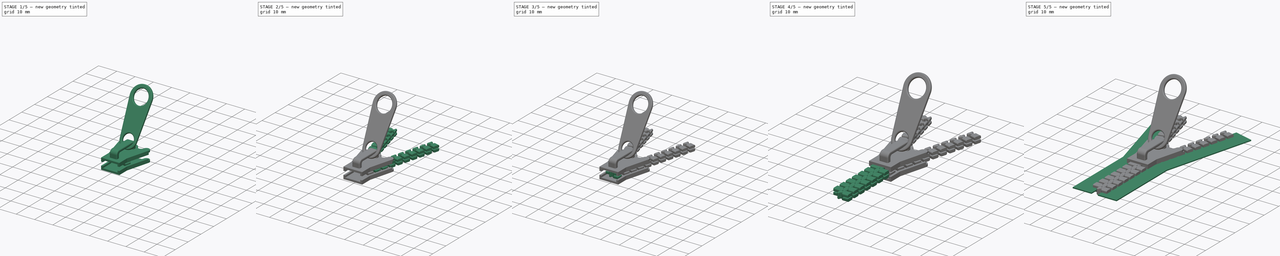
[diagram: build sequence overview — one tinted view per stage of 5, left to right]
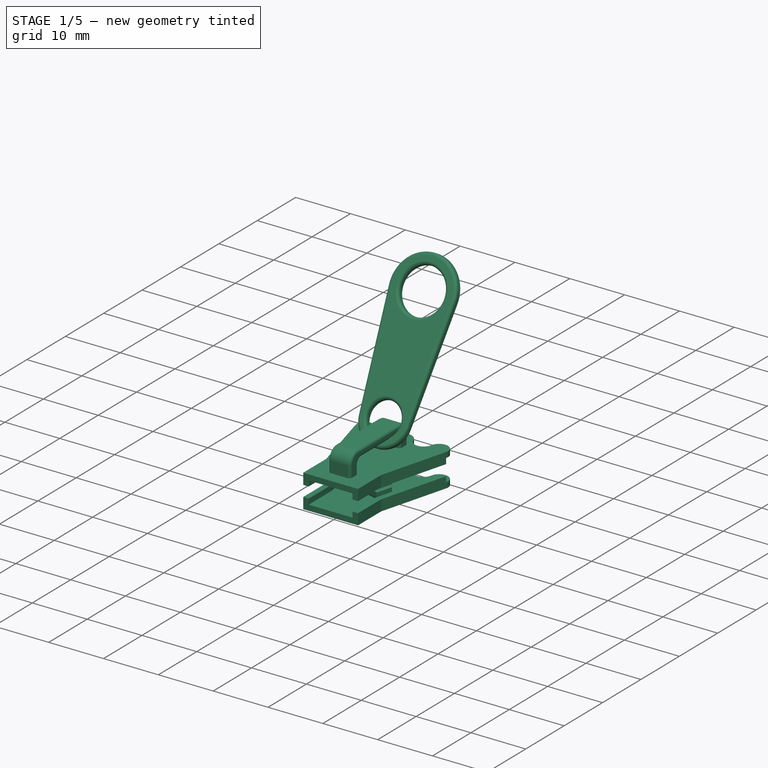
[diagram: stage 1 of 5 — iso view after this stage's code; geometry added in this stage tinted green]
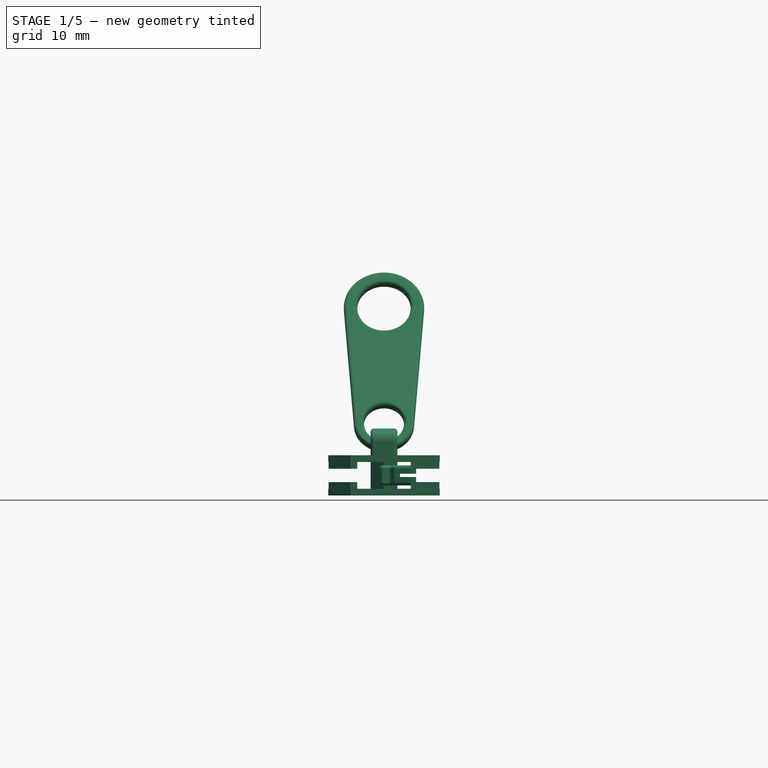
[diagram: stage 1 of 5 — front view after this stage's code; geometry added in this stage tinted green]
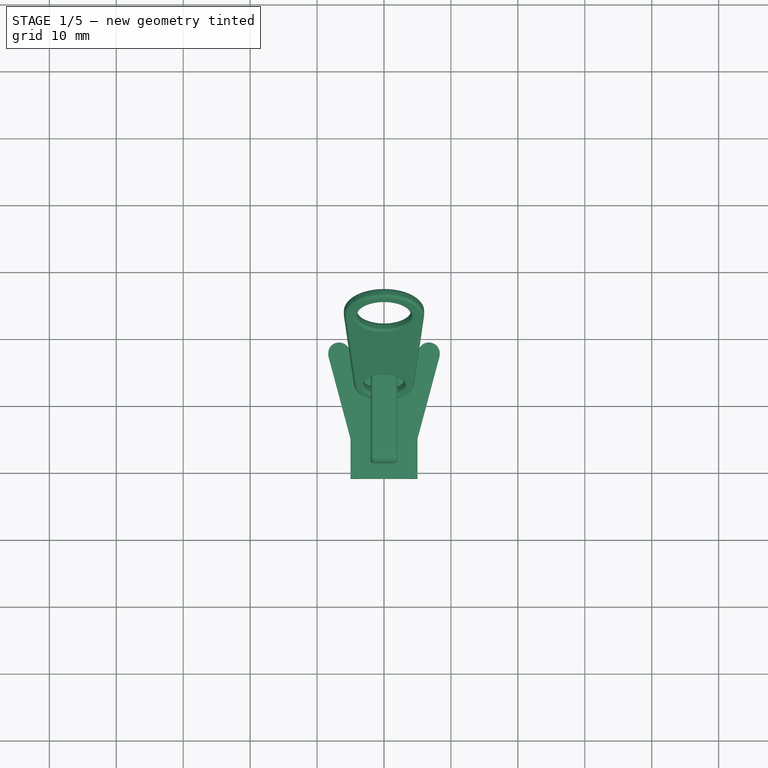
[diagram: stage 1 of 5 — top view after this stage's code; geometry added in this stage tinted green]
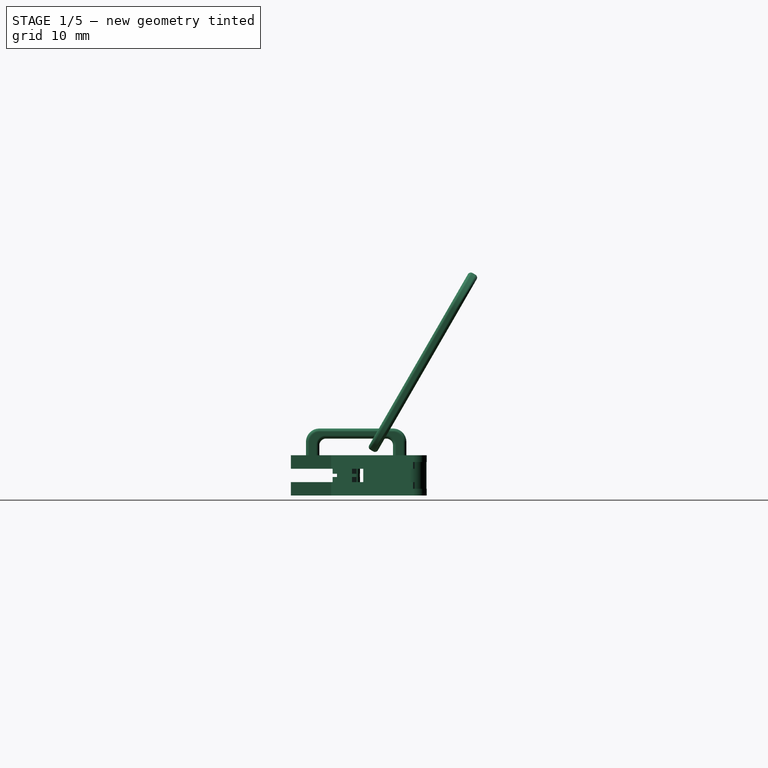
[diagram: stage 1 of 5 — right view after this stage's code; geometry added in this stage tinted green]
FCSTD DOCUMENT  (FreeCAD 0.18R13524 (Git))
Label: ZIPPER-CJ
License: All rights reserved
LicenseURL: http://en.wikipedia.org/wiki/All_rights_reserved
objects: Part::FeaturePython×9, Part::MultiFuse×3, Sketcher::SketchObject×1, PartDesign::Pad×1, PartDesign::Body×1, Part::Box×1, Part::Cut×1
note: 18 computed .brp shape members not serialized (recipe doc carries the construction recipe); baked Part::Feature solids carry a one-line shape summary decoded from their .brp

FEATURE [Part::FeaturePython] ZIPPER_0_01001  # a2plus imported part (geometry in sourceFile) (typed FeaturePython)
  Placement = pos=(0.07,8,0) rot=(0,0,1;6.02139rad)
  fixedPosition = false
  sourceFile = <path>
  timeLastImport = 1.52406e+09
  updateColors = true
FEATURE [Part::FeaturePython] ZIPPER_3_01  # a2plus imported part (geometry in sourceFile) (typed FeaturePython)
  Placement = pos=(0,17.4,0) rot=(0,0,1;0rad)
  fixedPosition = false
  sourceFile = <path>
  timeLastImport = 1.52406e+09
  updateColors = true
FEATURE [Part::FeaturePython] ZIPPER_4_01  # a2plus imported part (geometry in sourceFile) (typed FeaturePython)
  Placement = pos=(0,13.5,7.59808) rot=(1,0,0;5.75959rad)
  fixedPosition = false
  sourceFile = <path>
  timeLastImport = 1.52406e+09
  updateColors = true
note: 4 file-system paths scrubbed to <path> (originals preserved in the JSON sidecar)
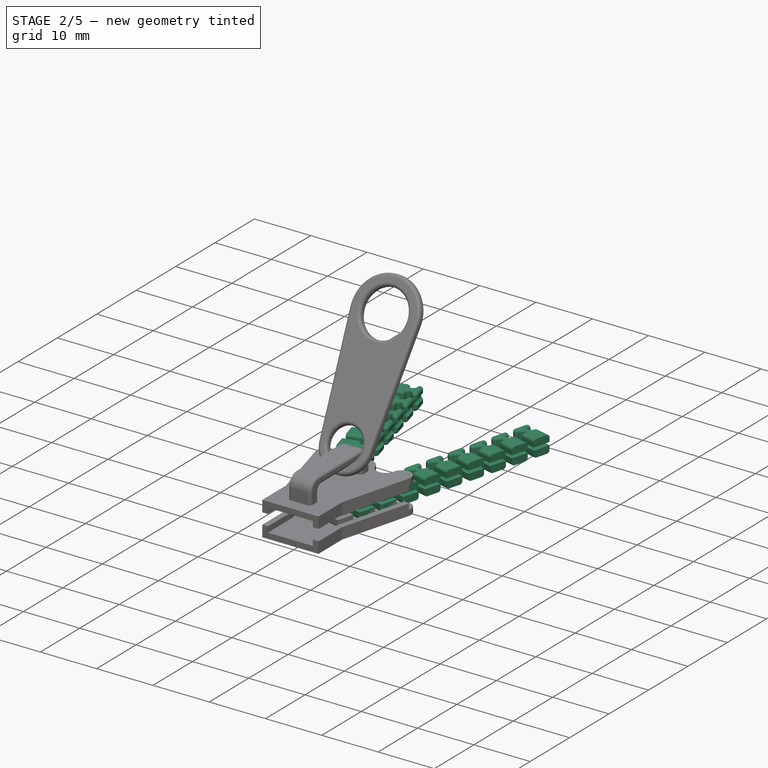
[diagram: stage 2 of 5 — iso view after this stage's code; geometry added in this stage tinted green]
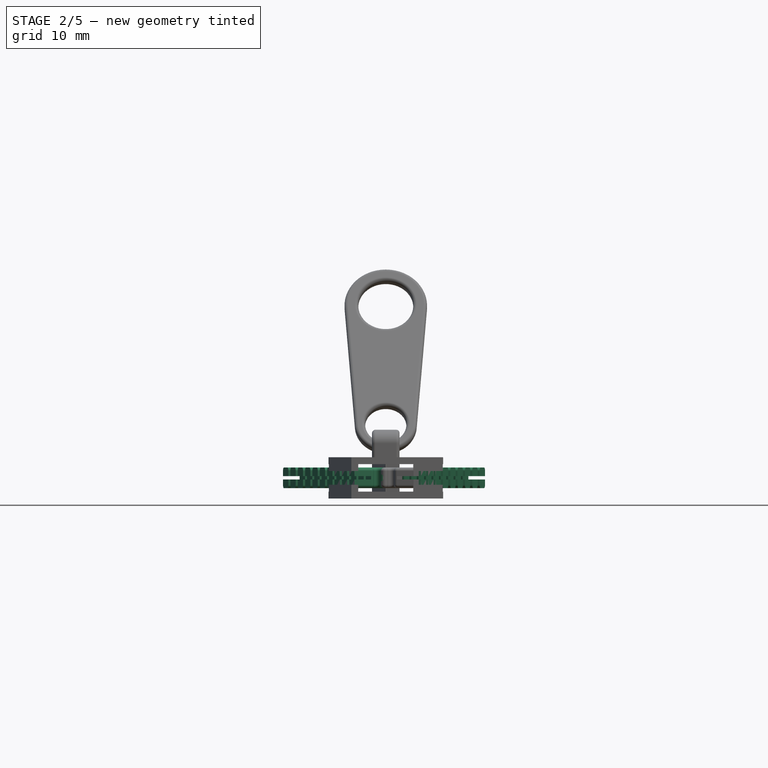
[diagram: stage 2 of 5 — front view after this stage's code; geometry added in this stage tinted green]
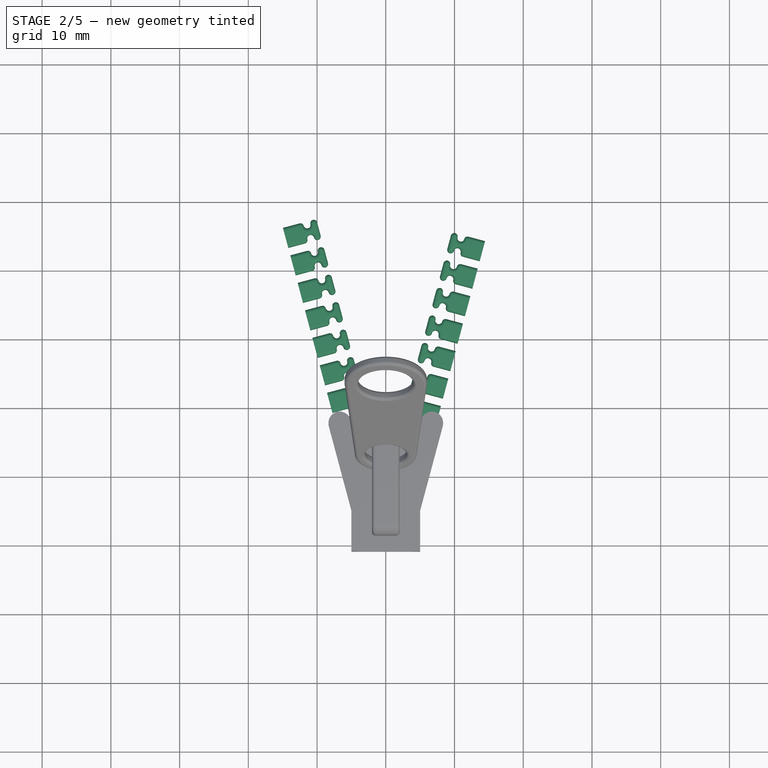
[diagram: stage 2 of 5 — top view after this stage's code; geometry added in this stage tinted green]
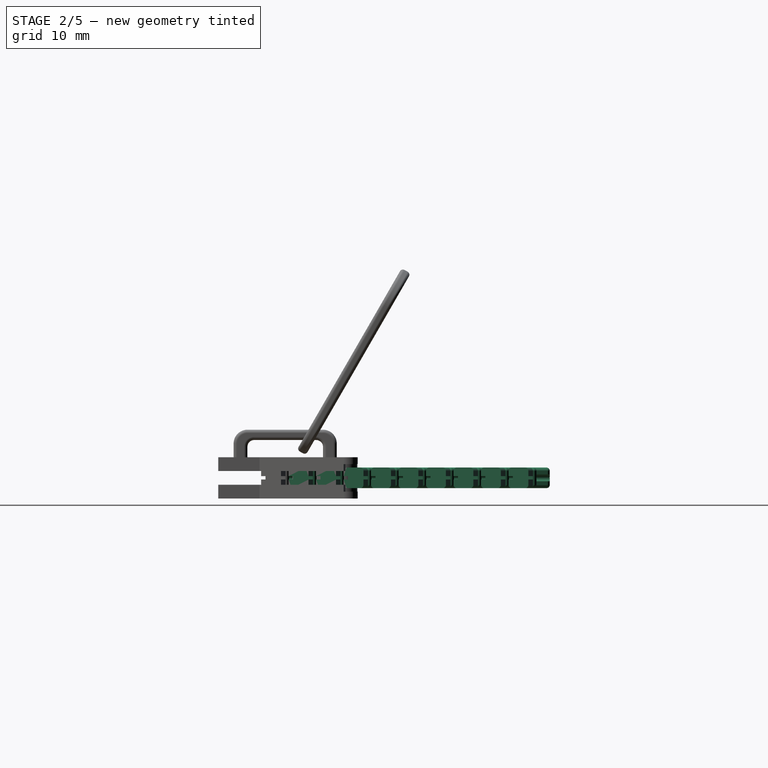
[diagram: stage 2 of 5 — right view after this stage's code; geometry added in this stage tinted green]
FEATURE [Part::FeaturePython] Clone001  label="ZIPPER_0_01002"  # Draft clone (typed FeaturePython)
  AttacherType = Attacher::AttachEngine3D
  Fuse = false
  Objects = -> [ZIPPER_0_01001]
  Placement = pos=(-0.59,9.93185,0) rot=(0,0,-1;2.87979rad)
  Scale = (1,1,1)
FEATURE [Part::FeaturePython] Array001  # Draft array (typed FeaturePython)
  Angle = 360
  ArrayType = 0
  Axis = (0,0,1)
  Base = -> ZIPPER_0_01001
  Center = (0,0,0)
  Fuse = false
  IntervalAxis = (0,0,0)
  IntervalX = (1,0,0)
  IntervalY = (1.07,4,0)
  IntervalZ = (0,0,0)
  NumberPolar = 1
  NumberX = 1
  NumberY = 10
  NumberZ = 1
FEATURE [Part::FeaturePython] Array002  # Draft array (typed FeaturePython)
  Angle = 360
  ArrayType = 0
  Axis = (0,0,1)
  Base = -> Clone001
  Center = (0,0,0)
  Fuse = false
  IntervalAxis = (0,0,0)
  IntervalX = (1,0,0)
  IntervalY = (-1.07,4,0)
  IntervalZ = (0,0,0)
  NumberPolar = 1
  NumberX = 1
  NumberY = 10
  NumberZ = 1
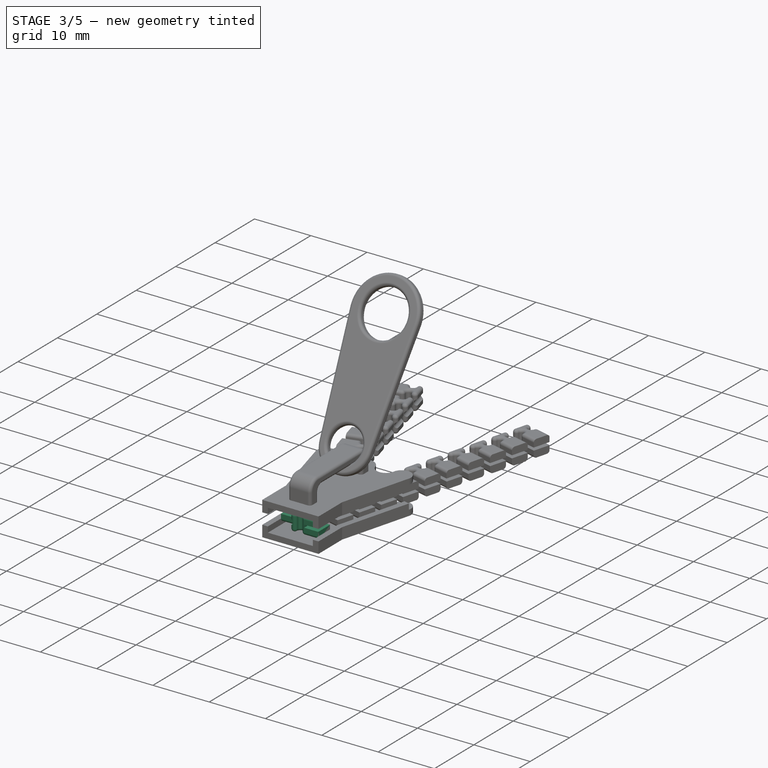
[diagram: stage 3 of 5 — iso view after this stage's code; geometry added in this stage tinted green]
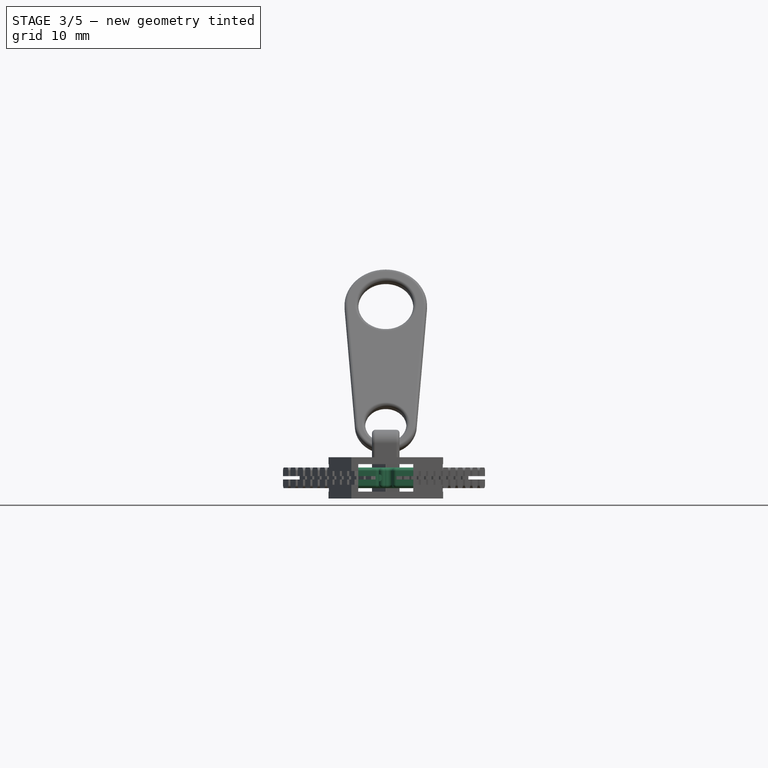
[diagram: stage 3 of 5 — front view after this stage's code; geometry added in this stage tinted green]
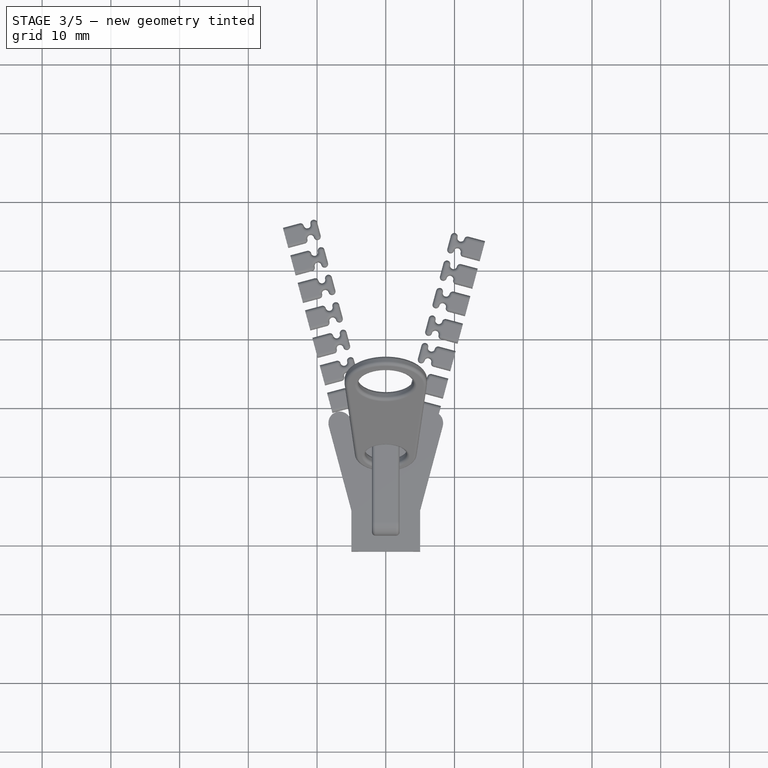
[diagram: stage 3 of 5 — top view after this stage's code; geometry added in this stage tinted green]
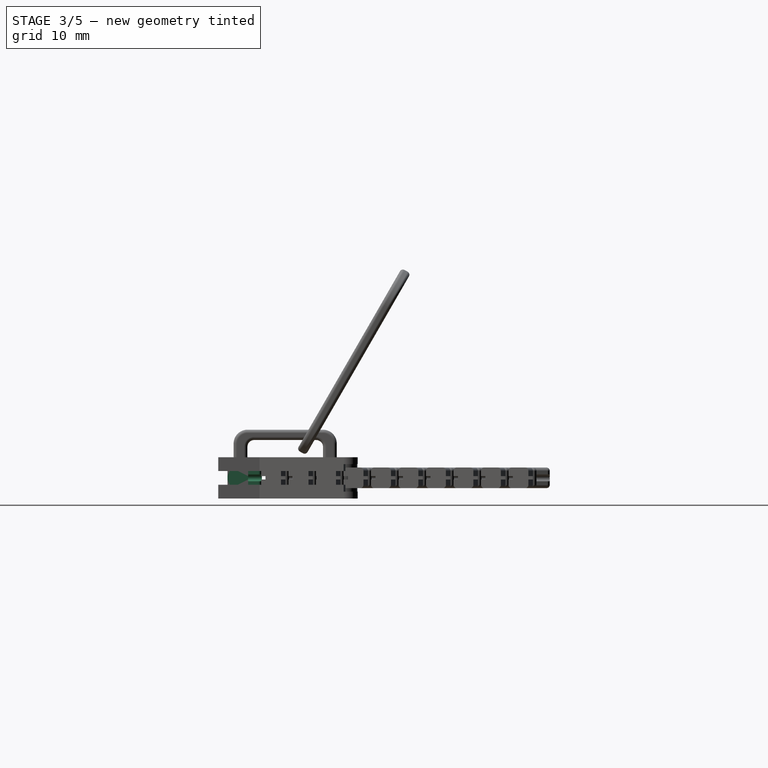
[diagram: stage 3 of 5 — right view after this stage's code; geometry added in this stage tinted green]
FEATURE [Part::FeaturePython] ZIPPER_0_01  # a2plus imported part (geometry in sourceFile) (typed FeaturePython)
  Placement = pos=(-0.5,2,0) rot=(0,0,1;0rad)
  fixedPosition = true
  sourceFile = <path>
  timeLastImport = 1.52406e+09
  updateColors = true
FEATURE [Part::FeaturePython] Clone  label="ZIPPER_0_002"  # Draft clone (typed FeaturePython)
  AttacherType = Attacher::AttachEngine3D
  Fuse = false
  Objects = -> [ZIPPER_0_01]
  Placement = pos=(0.5,4,0) rot=(0,0,1;3.14159rad)
  Scale = (1,1,1)
FEATURE [Part::MultiFuse] Fusion
  Shapes = -> [ZIPPER_0_01,Clone]
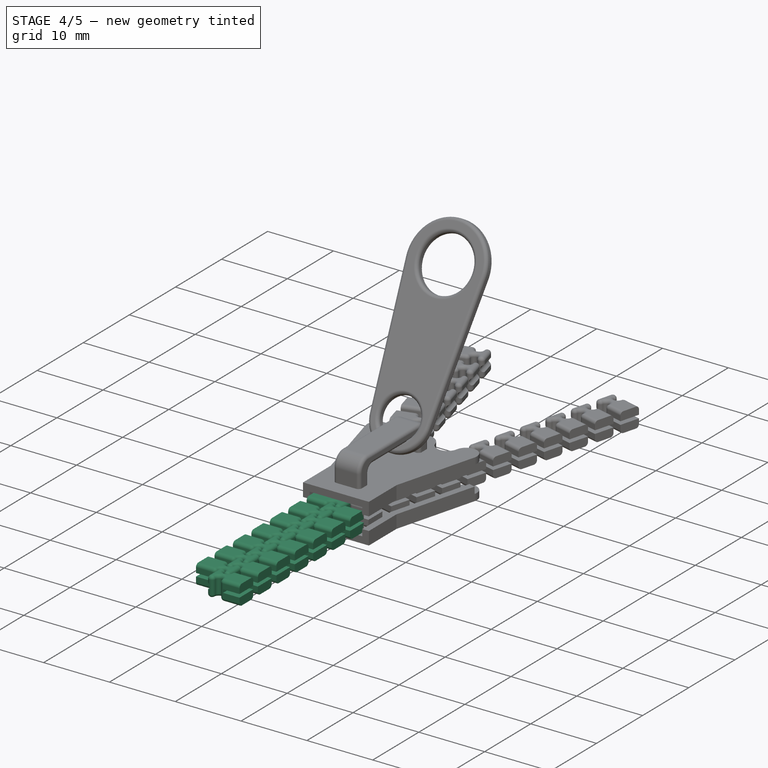
[diagram: stage 4 of 5 — iso view after this stage's code; geometry added in this stage tinted green]
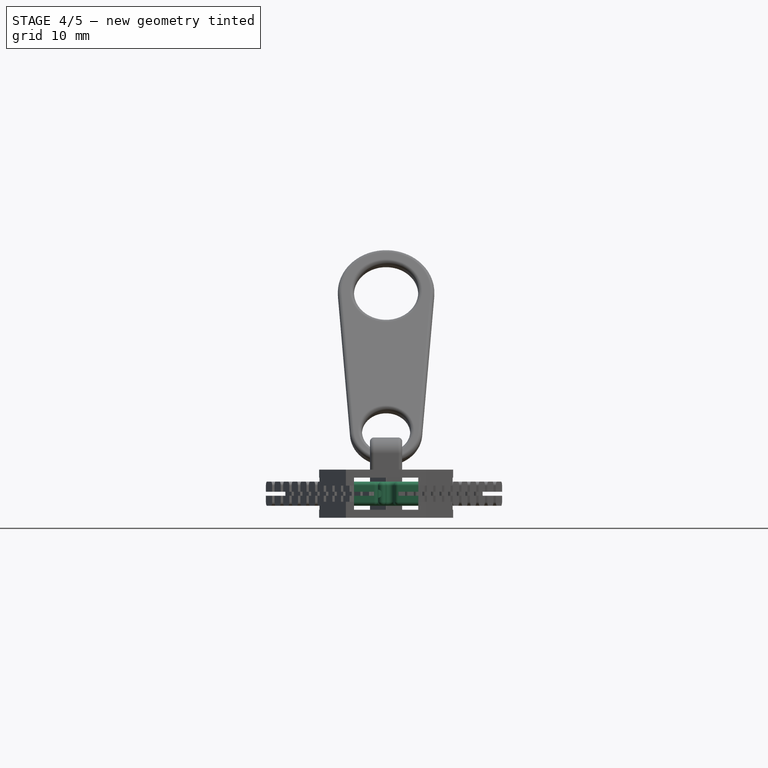
[diagram: stage 4 of 5 — front view after this stage's code; geometry added in this stage tinted green]
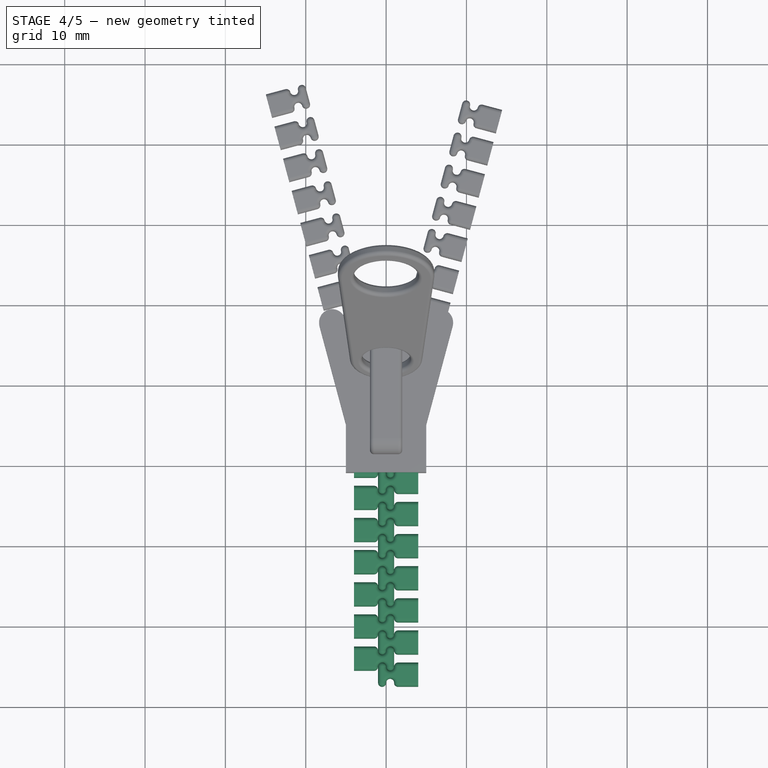
[diagram: stage 4 of 5 — top view after this stage's code; geometry added in this stage tinted green]
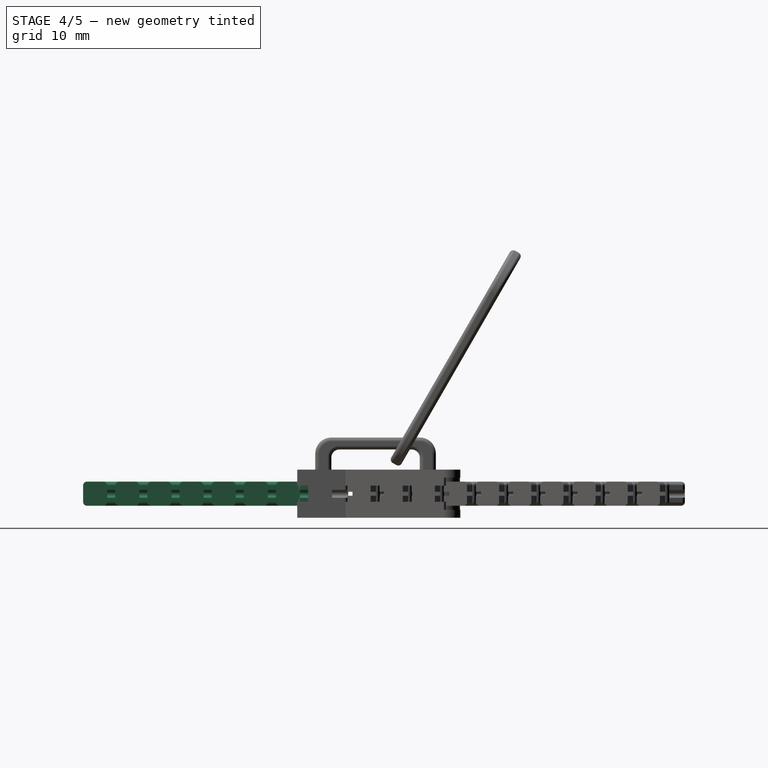
[diagram: stage 4 of 5 — right view after this stage's code; geometry added in this stage tinted green]
FEATURE [Part::FeaturePython] Array  # Draft array (typed FeaturePython)
  Angle = 360
  ArrayType = 0
  Axis = (0,0,1)
  Base = -> Fusion
  Center = (0,0,0)
  Fuse = false
  IntervalAxis = (0,0,0)
  IntervalX = (1,0,0)
  IntervalY = (0,-4,0)
  IntervalZ = (0,0,0)
  NumberPolar = 1
  NumberX = 1
  NumberY = 8
  NumberZ = 1
FEATURE [Part::MultiFuse] Fusion001
  Shapes = -> [Array]
FEATURE [Part::MultiFuse] Fusion002
  Shapes = -> [Fusion001,Array001,Array002]
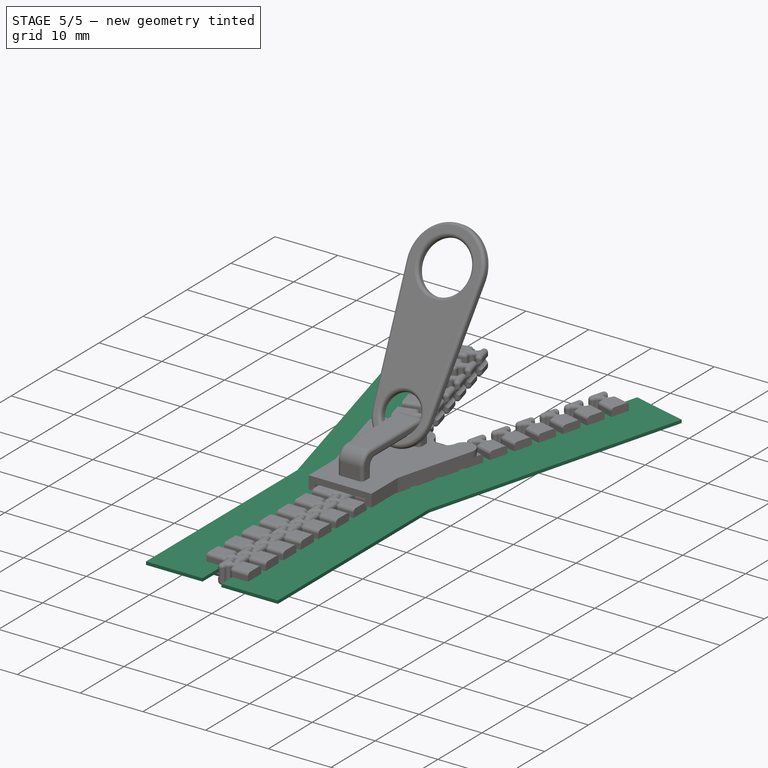
[diagram: stage 5 of 5 — iso view after this stage's code; geometry added in this stage tinted green]
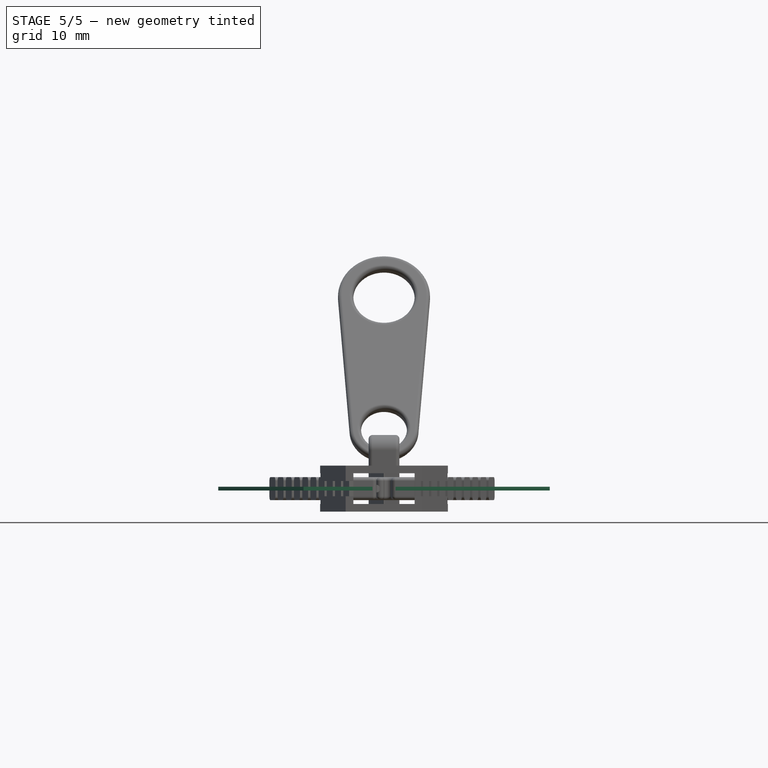
[diagram: stage 5 of 5 — front view after this stage's code; geometry added in this stage tinted green]
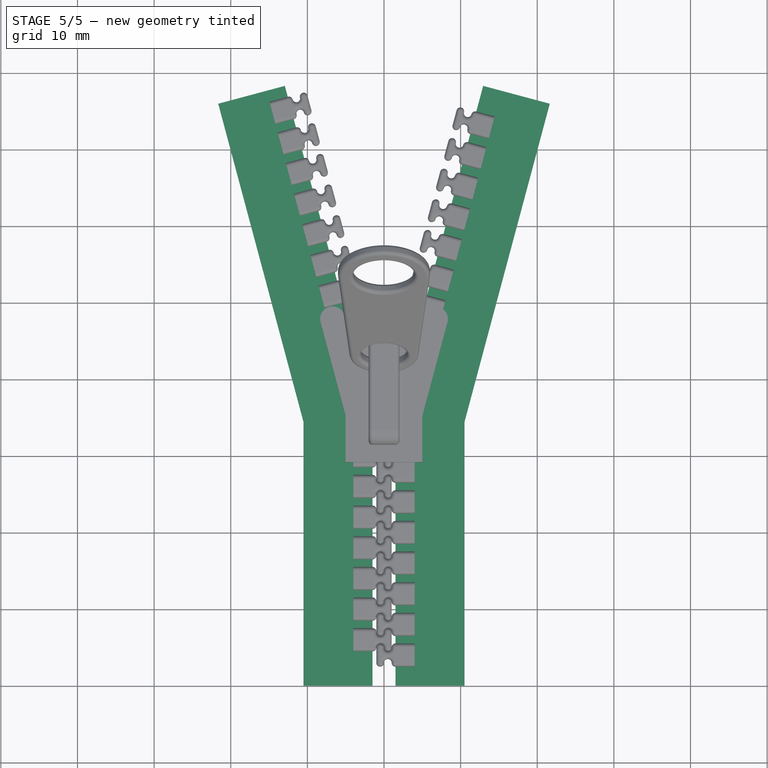
[diagram: stage 5 of 5 — top view after this stage's code; geometry added in this stage tinted green]
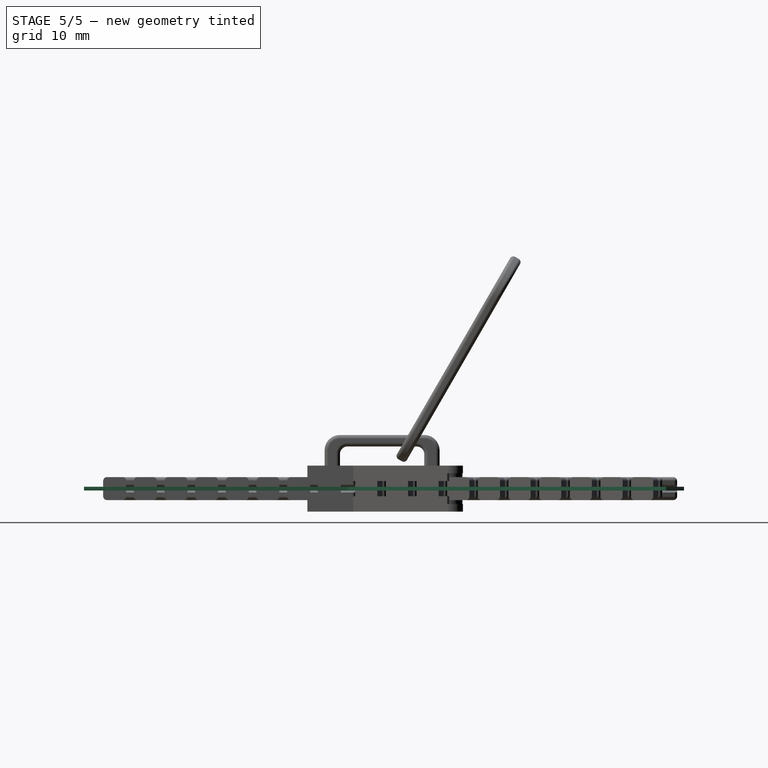
[diagram: stage 5 of 5 — right view after this stage's code; geometry added in this stage tinted green]
FEATURE [Sketcher::SketchObject] Sketch
  MapMode = 5
  Support = -> [XY_Plane]
  sketch-geometry (9):
    g0: LineSegment StartX=0 StartY=0 StartZ=0 EndX=12.941 EndY=48.2963 EndZ=0
    g1: LineSegment StartX=12.941 StartY=48.2963 StartZ=0 EndX=21.6343 EndY=45.9669 EndZ=0
    g2: LineSegment StartX=21.6343 StartY=45.9669 StartZ=0 EndX=10.5 EndY=4.4132 EndZ=0
    g3: LineSegment StartX=10.5 StartY=4.4132 StartZ=0 EndX=10.5 EndY=-30 EndZ=0
    g4: LineSegment StartX=10.5 StartY=-30 StartZ=0 EndX=-10.5 EndY=-30 EndZ=0
    g5: LineSegment StartX=-10.5 StartY=-30 StartZ=0 EndX=-10.5 EndY=4.4132 EndZ=0
    g6: LineSegment StartX=-10.5 StartY=4.4132 StartZ=0 EndX=-21.6343 EndY=45.9669 EndZ=0
    g7: LineSegment StartX=-21.6343 StartY=45.9669 StartZ=0 EndX=-12.941 EndY=48.2963 EndZ=0
    g8: LineSegment StartX=-12.941 StartY=48.2963 StartZ=0 EndX=0 EndY=0 EndZ=0
  constraints (26):
    c: Coincident(g-1,g0)
    c: Coincident(g0,g1)
    c: Coincident(g1,g2)
    c: Coincident(g2,g3)
    c: Vertical(g3)
    c: Coincident(g3,g4)
    c: Horizontal(g4)
    c: Coincident(g4,g5)
    c: Vertical(g5)
    c: Coincident(g5,g6)
    c: Coincident(g6,g7)
    c: Coincident(g7,g8)
    c: Coincident(g8,g-1)
    c: Symmetric(g4,g3,g-2)
    c: Perpendicular(g8,g7)
    c: Perpendicular(g1,g0)
    c: Parallel(g0,g2)
    c: Parallel(g8,g6)
    c: Horizontal(g7,g0)
    c: Angle(g0,g-2) = 0.261799
    c: Angle(g-2,g8) = 0.261799
    c: Equal(g5,g3)
    c: DistanceX(g4,g4) = 21
    c: Distance(g0) = 50
    c: DistanceY(g3,g-1) = 30
    c: Distance(g1) = 9
FEATURE [PartDesign::Pad] Pad
  Length = 0.5
  Length2 = 100
  Midplane = true
  Profile = -> Sketch
  Type = 0
FEATURE [PartDesign::Body] Body
  Group = -> [Sketch,Pad]
  Origin = -> Origin
  Tip = -> Pad
FEATURE [Part::Box] Box  label="Cube"
  AttacherType = Attacher::AttachEngine3D
  Height = 10
  Length = 3
  Placement = pos=(-1.5,-30,-5) rot=(0,0,1;0rad)
  Width = 70
FEATURE [Part::Cut] Cut
  Base = -> Body
  Tool = -> Box
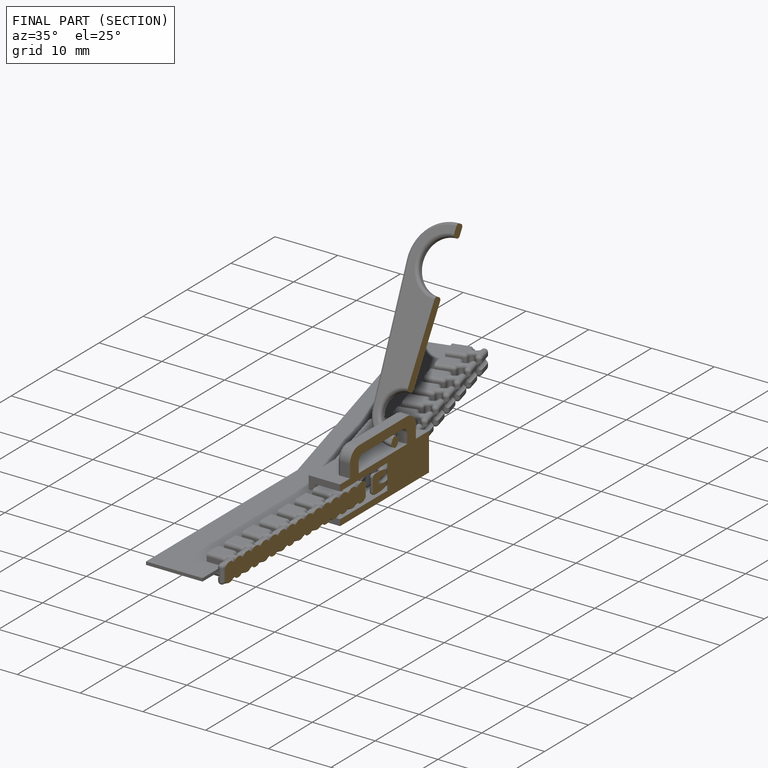
[diagram: finished part — half-section view (interior)]
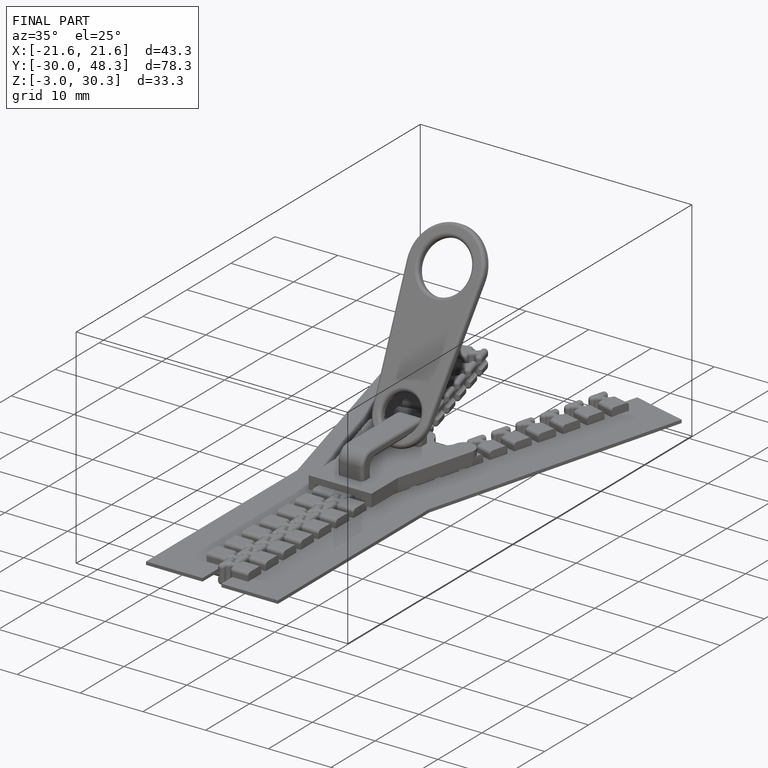
[diagram: finished part — iso view with bounding-box wireframe]
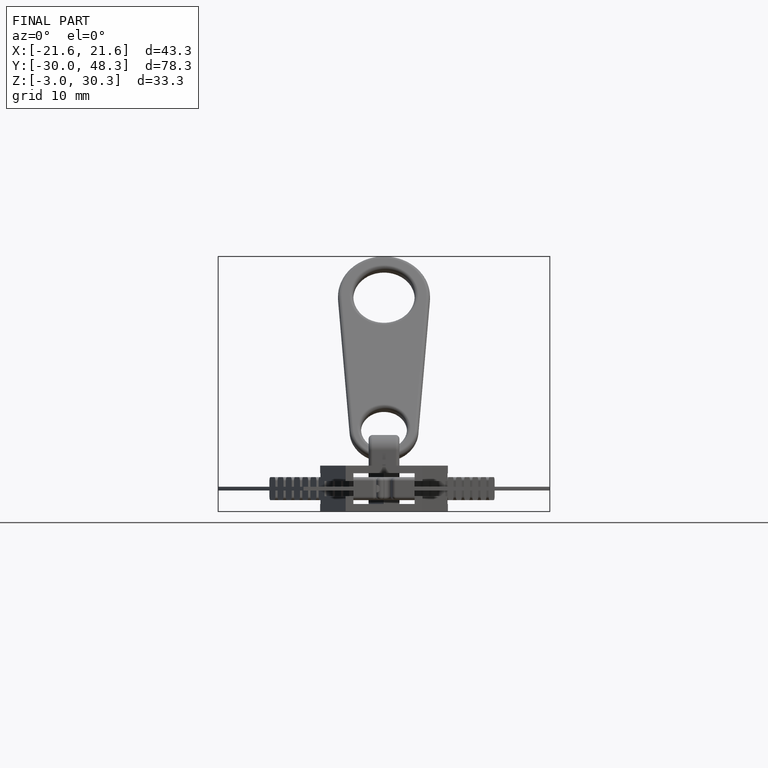
[diagram: finished part — front view with bounding-box wireframe]
